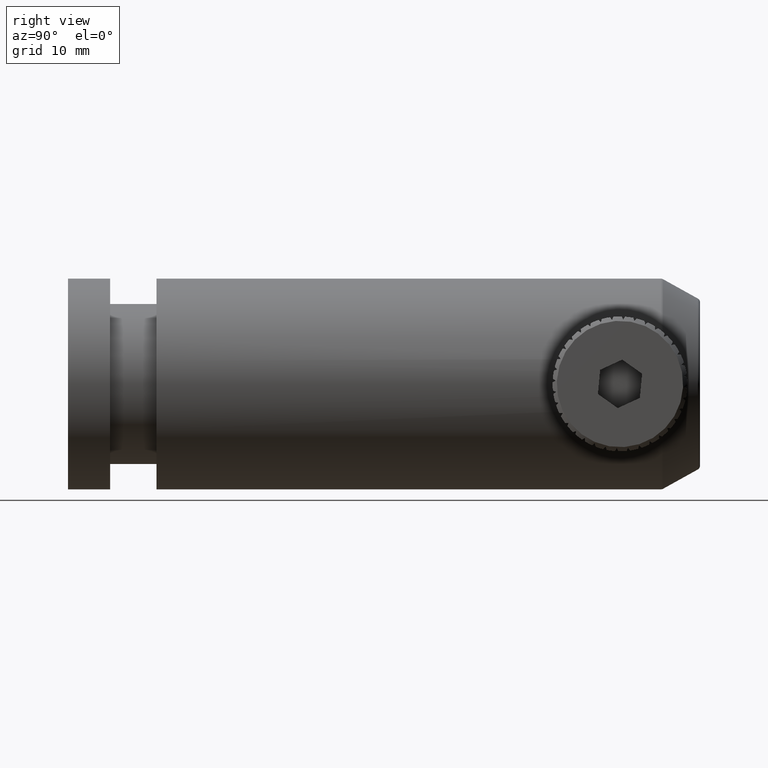
[diagram: clean part render]
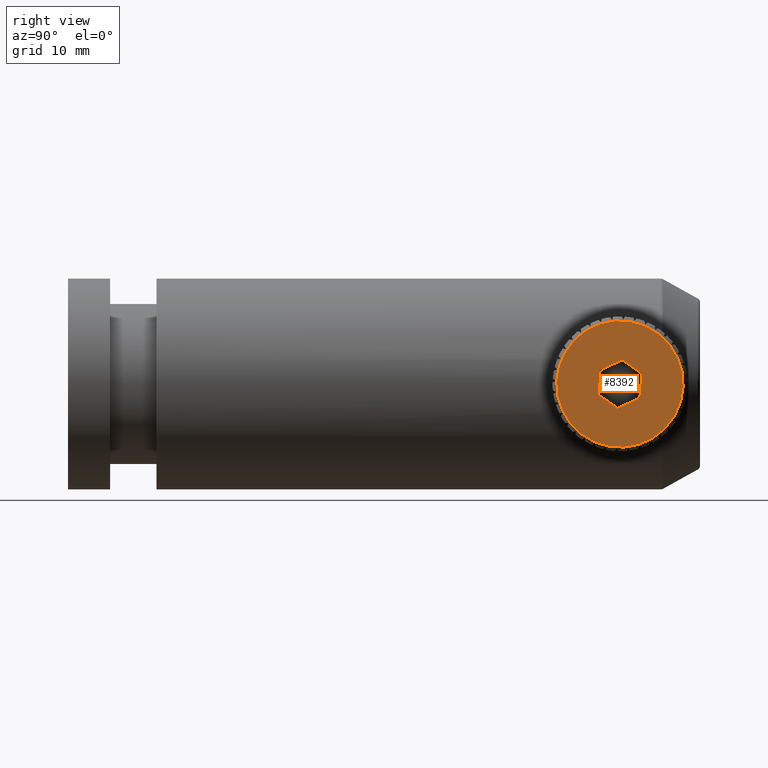
[diagram: same view with one face highlighted and labeled with its STEP entity id]
A machine part, right view. The second image highlights one B-rep face of the part: STEP entity #8392.
In plain terms, the highlighted planar face has unit normal (-1, -0, 0).
Its self-contained STEP definition (entity closure, byte-faithful):
#164 = CARTESIAN_POINT ( 'NONE',  ( 20.13128916436950533, 56.04246319154339773, -1.668005618766497111 ) ) ;
#235 = CARTESIAN_POINT ( 'NONE',  ( 20.13128916436950533, 61.17696643013342594, -0.3758109750870021748 ) ) ;
#488 = VECTOR ( 'NONE', #2462, 1000.000000000000227 ) ;
#589 = DIRECTION ( 'NONE',  ( 0.0000000000000000000, -0.9987437986324323447, 0.05010813001160041580 ) ) ;
#921 = AXIS2_PLACEMENT_3D ( 'NONE', #6295, #8371, #4068 ) ;
#980 = AXIS2_PLACEMENT_3D ( 'NONE', #8330, #9071, #7586 ) ;
#1066 = CARTESIAN_POINT ( 'NONE',  ( 20.13128916436950533, 56.04246319154339773, -1.668005618766497111 ) ) ;
#1142 = LINE ( 'NONE', #1778, #488 ) ;
#1226 = AXIS2_PLACEMENT_3D ( 'NONE', #1329, #1288, #589 ) ;
#1261 = VERTEX_POINT ( 'NONE', #4105 ) ;
#1288 = DIRECTION ( 'NONE',  ( 1.000000000000000000, 1.264548628736567753E-17, -2.220446049250312588E-16 ) ) ;
#1329 = CARTESIAN_POINT ( 'NONE',  ( 20.13128916436950533, 53.68638794039017625, 4.336808689942002452E-16 ) ) ;
#1563 = CARTESIAN_POINT ( 'NONE',  ( 20.13128916436950533, 56.30896080547375249, 1.206418211343245339 ) ) ;
#1568 = EDGE_CURVE ( 'NONE', #4132, #8514, #8691, .T. ) ;
#1637 = CARTESIAN_POINT ( 'NONE',  ( 20.13128916436950533, 46.19580945064692656, 0.3758109750870039512 ) ) ;
#1778 = CARTESIAN_POINT ( 'NONE',  ( 20.13128916436950533, 53.95288555432053101, 2.874423830109742450 ) ) ;
#2070 = CARTESIAN_POINT ( 'NONE',  ( 20.13128916436950533, 51.06381507530660002, -1.206418211343244451 ) ) ;
#2106 = EDGE_LOOP ( 'NONE', ( #6851, #3363, #6123, #3322, #3970, #3479 ) ) ;
#2144 = VERTEX_POINT ( 'NONE', #164 ) ;
#2243 = VECTOR ( 'NONE', #7214, 1000.000000000000000 ) ;
#2341 = CARTESIAN_POINT ( 'NONE',  ( 20.13128916436950533, 51.33031268923695478, 1.668005618766498888 ) ) ;
#2437 = CARTESIAN_POINT ( 'NONE',  ( 20.13128916436950533, 53.41989032645982149, -2.874423830109741118 ) ) ;
#2462 = DIRECTION ( 'NONE',  ( -8.126003595357593163E-17, -0.9084858897752479123, -0.4179155274445734425 ) ) ;
#2520 = EDGE_CURVE ( 'NONE', #8601, #6860, #5545, .T. ) ;
#2678 = FACE_BOUND ( 'NONE', #2106, .T. ) ;
#2717 = DIRECTION ( 'NONE',  ( 8.126003595357596861E-17, 0.9084858897752480233, 0.4179155274445735535 ) ) ;
#2882 = CARTESIAN_POINT ( 'NONE',  ( 20.13128916436950533, 56.30896080547375249, 1.206418211343245339 ) ) ;
#3322 = ORIENTED_EDGE ( 'NONE', *, *, #4291, .F. ) ;
#3363 = ORIENTED_EDGE ( 'NONE', *, *, #9098, .F. ) ;
#3479 = ORIENTED_EDGE ( 'NONE', *, *, #1568, .F. ) ;
#3970 = ORIENTED_EDGE ( 'NONE', *, *, #8187, .F. ) ;
#4008 = DIRECTION ( 'NONE',  ( 2.208183136120873328E-16, 0.09231748148465018788, 0.9957296232473609177 ) ) ;
#4068 = DIRECTION ( 'NONE',  ( 2.428612866367530240E-17, -0.9987437986324323447, 0.05010813001160040886 ) ) ;
#4105 = CARTESIAN_POINT ( 'NONE',  ( 20.13128916436950533, 53.41989032645982149, -2.874423830109741118 ) ) ;
#4132 = VERTEX_POINT ( 'NONE', #6749 ) ;
#4200 = EDGE_CURVE ( 'NONE', #2144, #7956, #4757, .T. ) ;
#4291 = EDGE_CURVE ( 'NONE', #1261, #2144, #6146, .T. ) ;
#4671 = VECTOR ( 'NONE', #2717, 999.9999999999998863 ) ;
#4757 = LINE ( 'NONE', #1066, #7032 ) ;
#4771 = FACE_OUTER_BOUND ( 'NONE', #8333, .T. ) ;
#4901 = VECTOR ( 'NONE', #6806, 999.9999999999998863 ) ;
#5040 = LINE ( 'NONE', #1563, #2243 ) ;
#5193 = EDGE_CURVE ( 'NONE', #7107, #4132, #1142, .T. ) ;
#5545 = CIRCLE ( 'NONE', #980, 7.500000000000007994 ) ;
#5977 = CARTESIAN_POINT ( 'NONE',  ( 20.13128916436950533, 51.06381507530660002, -1.206418211343244451 ) ) ;
#6123 = ORIENTED_EDGE ( 'NONE', *, *, #4200, .F. ) ;
#6146 = LINE ( 'NONE', #2437, #4671 ) ;
#6295 = CARTESIAN_POINT ( 'NONE',  ( 20.13128916436950533, 53.68638794039017625, 4.336808689942002452E-16 ) ) ;
#6749 = CARTESIAN_POINT ( 'NONE',  ( 20.13128916436950533, 51.33031268923695478, 1.668005618766498888 ) ) ;
#6759 = LINE ( 'NONE', #5977, #4901 ) ;
#6806 = DIRECTION ( 'NONE',  ( -1.395582776585113026E-16, 0.8161684082905976689, -0.5778140958027870866 ) ) ;
#6851 = ORIENTED_EDGE ( 'NONE', *, *, #5193, .F. ) ;
#6852 = PLANE ( 'NONE',  #921 ) ;
#6860 = VERTEX_POINT ( 'NONE', #1637 ) ;
#7032 = VECTOR ( 'NONE', #4008, 1000.000000000000000 ) ;
#7107 = VERTEX_POINT ( 'NONE', #8803 ) ;
#7214 = DIRECTION ( 'NONE',  ( 1.395582776585113026E-16, -0.8161684082905975579, 0.5778140958027871976 ) ) ;
#7346 = VECTOR ( 'NONE', #8738, 1000.000000000000114 ) ;
#7411 = ORIENTED_EDGE ( 'NONE', *, *, #8976, .T. ) ;
#7586 = DIRECTION ( 'NONE',  ( 0.0000000000000000000, -0.9987437986324323447, 0.05010813001160041580 ) ) ;
#7956 = VERTEX_POINT ( 'NONE', #2882 ) ;
#8187 = EDGE_CURVE ( 'NONE', #8514, #1261, #6759, .T. ) ;
#8330 = CARTESIAN_POINT ( 'NONE',  ( 20.13128916436950533, 53.68638794039017625, 4.336808689942002452E-16 ) ) ;
#8333 = EDGE_LOOP ( 'NONE', ( #7411, #9053 ) ) ;
#8371 = DIRECTION ( 'NONE',  ( -1.000000000000000000, -1.317510786072415822E-17, 2.220711766511247388E-16 ) ) ;
#8392 = ADVANCED_FACE ( 'NONE', ( #2678, #4771 ), #6852, .F. ) ;
#8514 = VERTEX_POINT ( 'NONE', #2070 ) ;
#8601 = VERTEX_POINT ( 'NONE', #235 ) ;
#8691 = LINE ( 'NONE', #2341, #7346 ) ;
#8738 = DIRECTION ( 'NONE',  ( -2.208183136120873328E-16, -0.09231748148465016013, -0.9957296232473609177 ) ) ;
#8803 = CARTESIAN_POINT ( 'NONE',  ( 20.13128916436950533, 53.95288555432053101, 2.874423830109742450 ) ) ;
#8976 = EDGE_CURVE ( 'NONE', #6860, #8601, #9042, .T. ) ;
#9042 = CIRCLE ( 'NONE', #1226, 7.500000000000007994 ) ;
#9053 = ORIENTED_EDGE ( 'NONE', *, *, #2520, .T. ) ;
#9071 = DIRECTION ( 'NONE',  ( 1.000000000000000000, 1.264548628736567753E-17, -2.220446049250312588E-16 ) ) ;
#9098 = EDGE_CURVE ( 'NONE', #7956, #7107, #5040, .T. ) ;